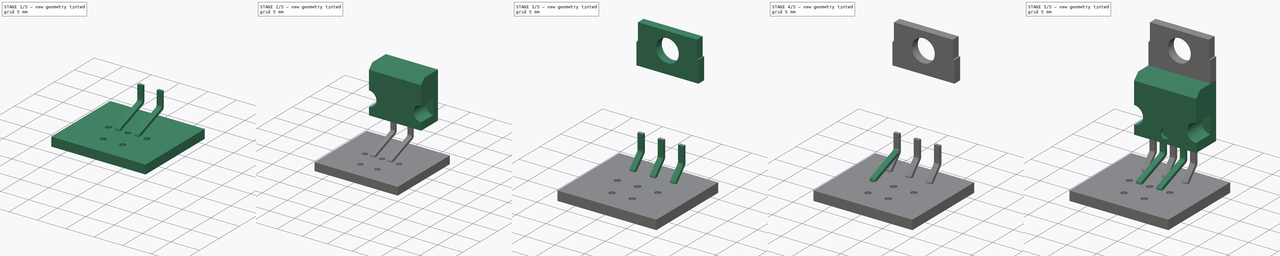
[diagram: build sequence overview — one tinted view per stage of 5, left to right]
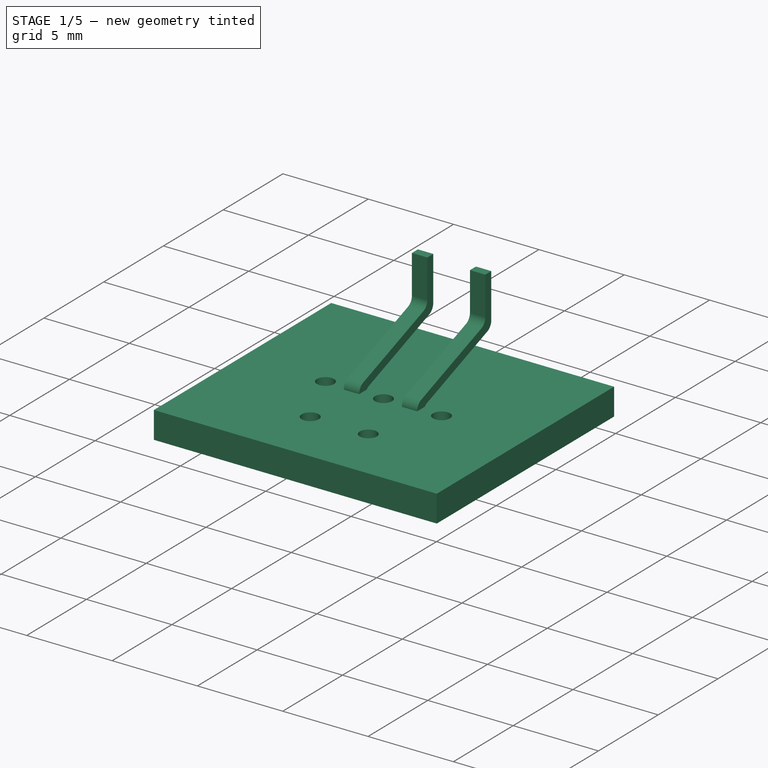
[diagram: stage 1 of 5 — iso view after this stage's code; geometry added in this stage tinted green]
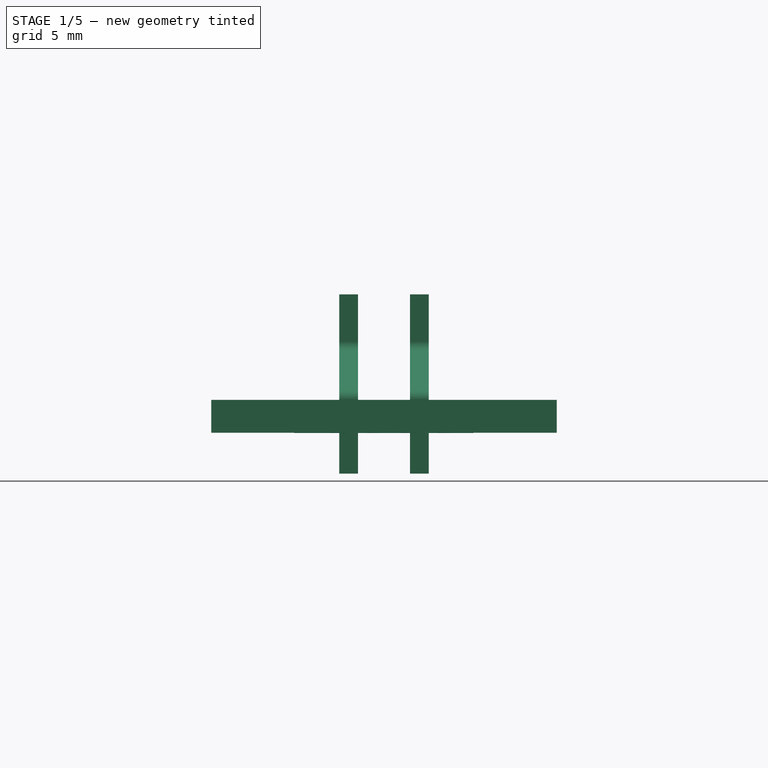
[diagram: stage 1 of 5 — front view after this stage's code; geometry added in this stage tinted green]
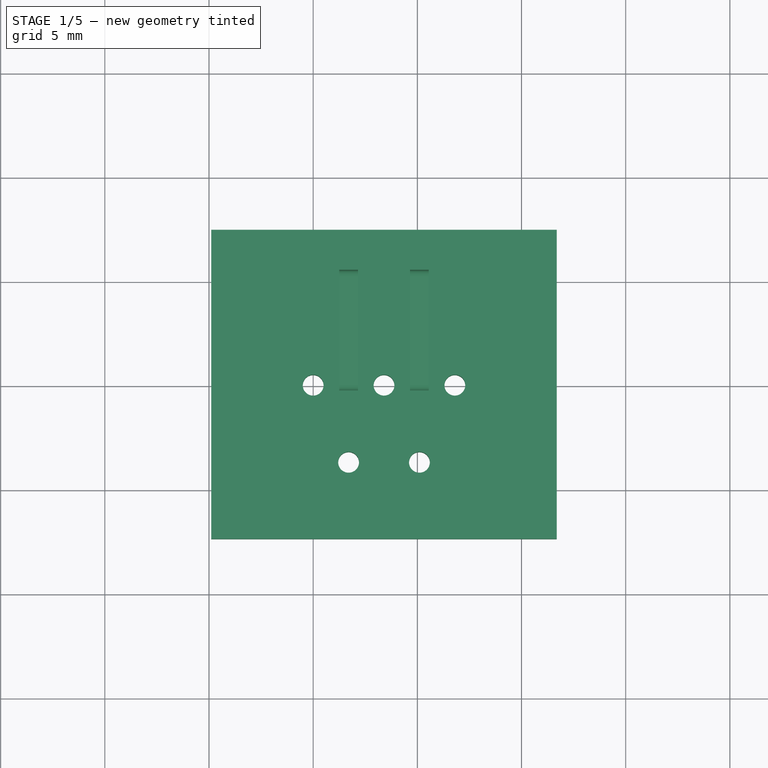
[diagram: stage 1 of 5 — top view after this stage's code; geometry added in this stage tinted green]
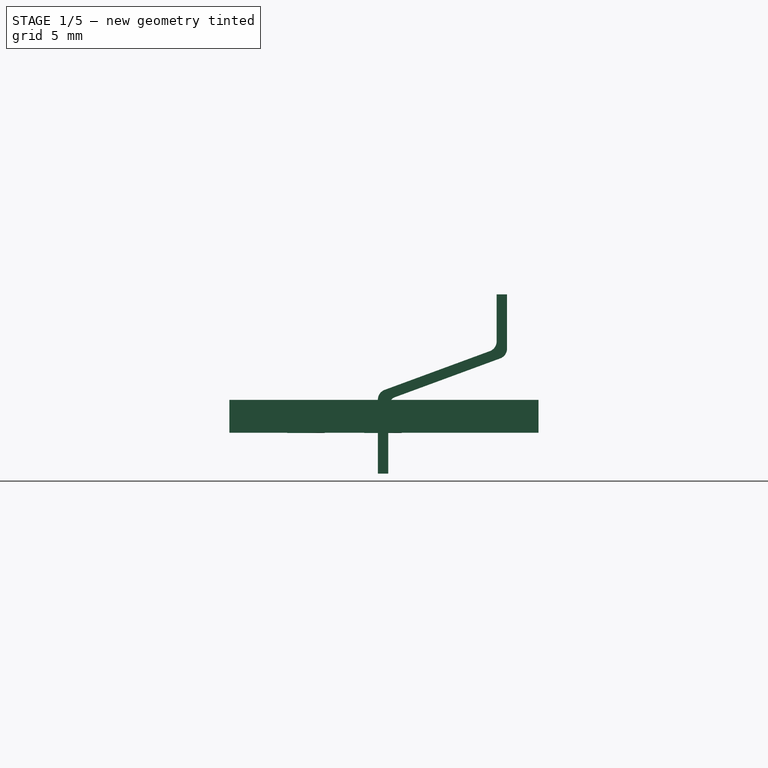
[diagram: stage 1 of 5 — right view after this stage's code; geometry added in this stage tinted green]
FCSTD DOCUMENT  (FreeCAD 0.17R10973 (Git))
Label: Pentawatt-5_Vertical_StaggeredType2
License: All rights reserved
LicenseURL: http://en.wikipedia.org/wiki/All_rights_reserved
objects: Sketcher::SketchObject×8, PartDesign::Body×7, Part::FeaturePython×7, PartDesign::Pad×4, PartDesign::Pocket×3, PartDesign::Fillet×2, PartDesign::Chamfer×1, PartDesign::ShapeBinder×1, App::Part×1, Part::MultiFuse×1, App::DocumentObjectGroup×1, Part::Feature×1
note: 42 computed .brp shape members not serialized (recipe doc carries the construction recipe); baked Part::Feature solids carry a one-line shape summary decoded from their .brp

FEATURE [Part::FeaturePython] BotPads  # a2plus imported part (geometry in sourceFile) (typed FeaturePython)
  fixedPosition = true
FEATURE [Part::FeaturePython] THPs  label="PTHs"  # a2plus imported part (geometry in sourceFile) (typed FeaturePython)
  fixedPosition = true
FEATURE [Part::FeaturePython] newPCB  label="Pcb"  # a2plus imported part (geometry in sourceFile) (typed FeaturePython)
  fixedPosition = true
FEATURE [App::DocumentObjectGroup] TO_220_5_Pentawatt_Multiwatt_5_Vertical_StaggeredType2_fp  label="TO_220_5_Pentawatt_Multiwatt_5_Vertical_StaggeredType2_fp001"
  Group = -> [Filk_lines,TopPads,BotPads,THPs,newPCB]
FEATURE [Part::Feature] Shape001  label="TO_220_5_Pentawatt_Multiwatt_5_Vertical_StaggeredType2"
  shape: bbox 10.4 x 8.75 x 24.4 mm, 89 faces (baked)
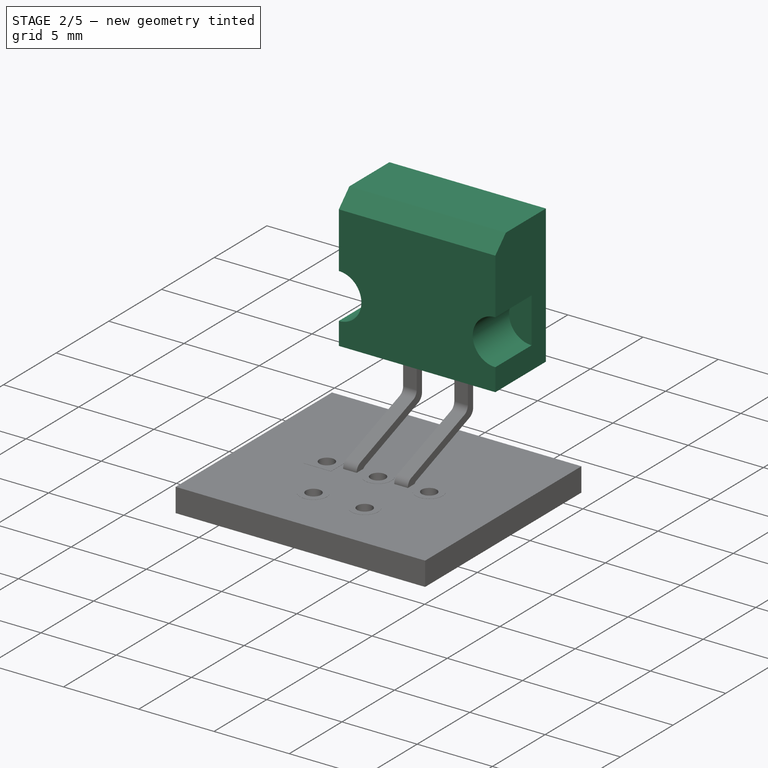
[diagram: stage 2 of 5 — iso view after this stage's code; geometry added in this stage tinted green]
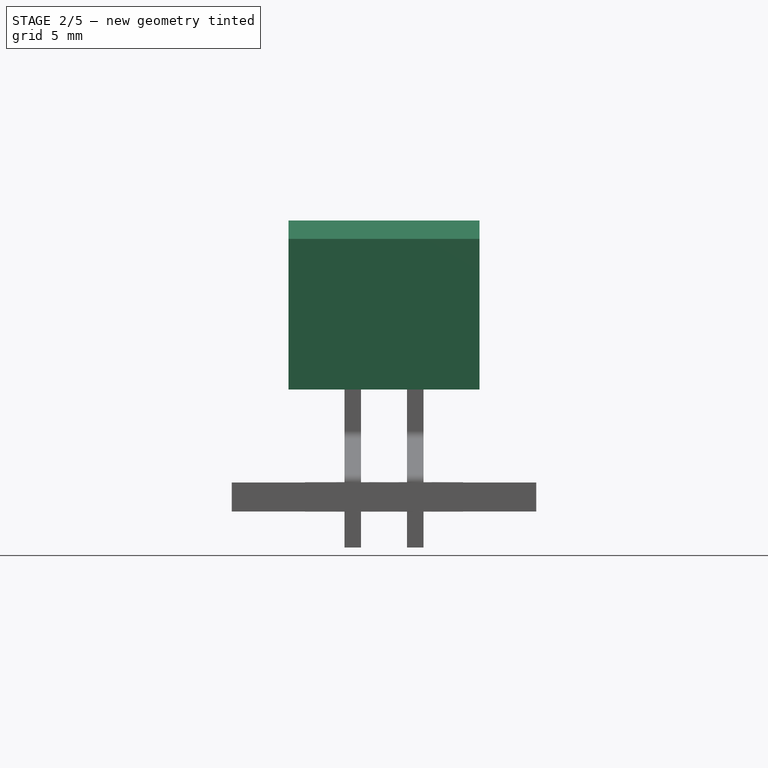
[diagram: stage 2 of 5 — front view after this stage's code; geometry added in this stage tinted green]
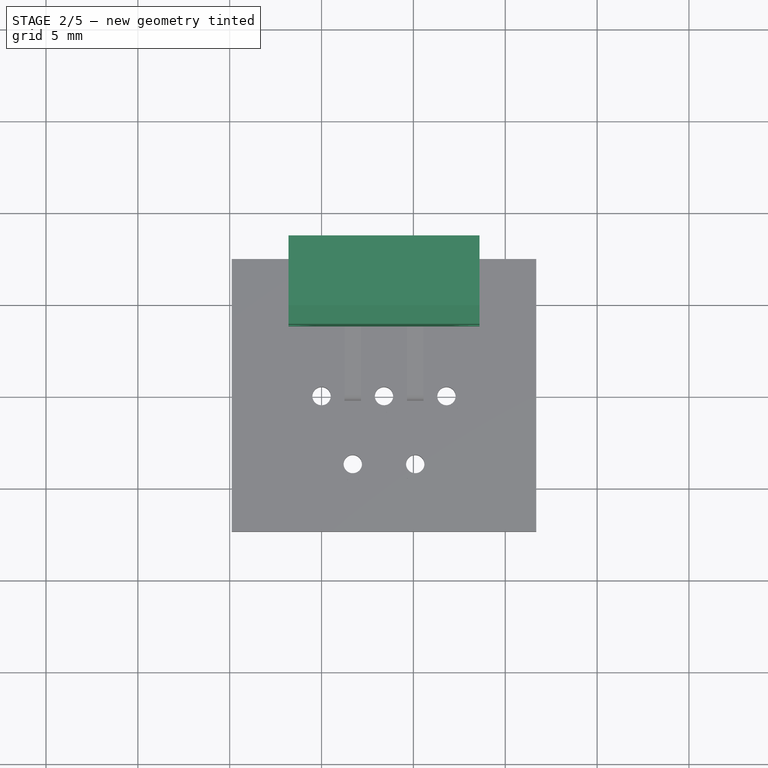
[diagram: stage 2 of 5 — top view after this stage's code; geometry added in this stage tinted green]
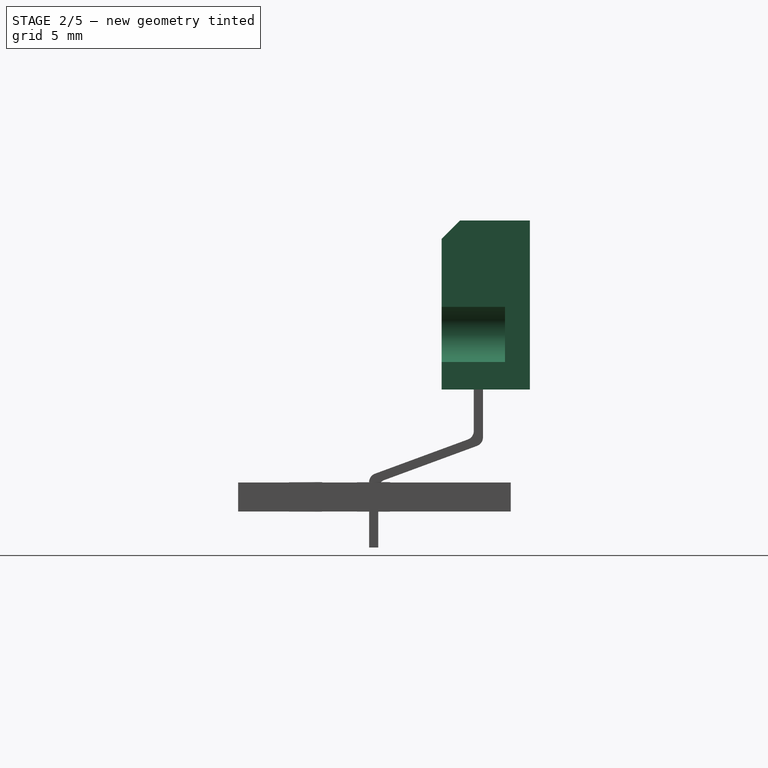
[diagram: stage 2 of 5 — right view after this stage's code; geometry added in this stage tinted green]
FEATURE [Sketcher::SketchObject] Sketch001  label="Long Pin001"
  MapMode = 5
  Placement = pos=(0,0,0) rot=(0.57735,0.57735,0.57735;2.0944rad)
  Support = -> [YZ_Plane004]
  sketch-geometry (9):
    g0: LineSegment StartX=2.74131 StartY=-3.81092 StartZ=0 EndX=2.74131 EndY=0.839079 EndZ=0
    g1: LineSegment StartX=2.74131 StartY=0.839079 StartZ=0 EndX=4.44131 EndY=2.1 EndZ=0
    g2: LineSegment StartX=4.44131 StartY=2.1 StartZ=0 EndX=4.44131 EndY=5.05 EndZ=0
    g3: LineSegment StartX=4.44131 StartY=5.05 StartZ=0 EndX=3.94131 EndY=5.05 EndZ=0
    g4: LineSegment StartX=3.94131 StartY=5.05 StartZ=0 EndX=3.94131 EndY=2.35167 EndZ=0
    g5: LineSegment StartX=3.94131 StartY=2.35167 StartZ=0 EndX=2.24131 EndY=1.09074 EndZ=0
    g6: LineSegment StartX=2.24131 StartY=1.09074 StartZ=0 EndX=2.24131 EndY=-3.81092 EndZ=0
    g7: LineSegment StartX=2.24131 StartY=-3.81092 StartZ=0 EndX=2.74131 EndY=-3.81092 EndZ=0
    g8: LineSegment StartX=1.90381 StartY=0.217887 StartZ=0 EndX=1.60594 EndY=0.619478 EndZ=0
FEATURE [PartDesign::Body] Body001  label="Short Pin Body"
  Origin = -> BodyOrigin001
FEATURE [PartDesign::Body] Body002  label="Plastic Body with holes"
  Origin = -> Body002Origin
FEATURE [Sketcher::SketchObject] Sketch003  label="body sketch"
  MapMode = 5
  Placement = pos=(0,0,5.05) rot=(0,0,1;0rad)
  Support = -> [XY_Plane006]
  superPlacement = pos=(0,0,5.05) rot=(0,0,1;0rad)
  sketch-geometry (4):
    g0: LineSegment StartX=-1.8 StartY=8.5 StartZ=0 EndX=8.6 EndY=8.5 EndZ=0
    g1: LineSegment StartX=8.6 StartY=8.5 StartZ=0 EndX=8.6 EndY=3.7 EndZ=0
    g2: LineSegment StartX=8.6 StartY=3.7 StartZ=0 EndX=-1.8 EndY=3.7 EndZ=0
    g3: LineSegment StartX=-1.8 StartY=3.7 StartZ=0 EndX=-1.8 EndY=8.5 EndZ=0
  constraints (12):
    c: Coincident(g0,g1)
    c: Coincident(g1,g2)
    c: Coincident(g2,g3)
    c: Coincident(g3,g0)
    c: Horizontal(g0)
    c: Horizontal(g2)
    c: Vertical(g1)
    c: Vertical(g3)
    c: DistanceY(g-1,g0) = 8.5
    c: DistanceY(g1,g1) = 4.8
    c: DistanceX(g0,g0) = 10.4
    c: DistanceX(g0,g-1) = 1.8
FEATURE [PartDesign::Pad] Pad002  label="body block"
  Length = 9.2
  Length2 = 100
  Profile = -> Sketch003
  Type = 0
FEATURE [PartDesign::Chamfer] Chamfer  label="Chamfer top of body"
  Base = -> Pad002 [Edge10]
  BaseFeature = -> Pad002
  Size = 1
FEATURE [Sketcher::SketchObject] Sketch004  label="body side holes"
  ExternalGeometry = -> [Chamfer]
  MapMode = 5
  Placement = pos=(0,3.7,0) rot=(1,0,0;1.5708rad)
  Support = -> [Chamfer]
  sketch-geometry (2):
    g0: Circle CenterX=-1.8 CenterY=8.05 CenterZ=0 NormalX=0 NormalY=0 NormalZ=1 Radius=1.5
    g1: Circle CenterX=8.6 CenterY=8.05 CenterZ=0 NormalX=0 NormalY=0 NormalZ=1 Radius=1.5
  constraints (6):
    c: PointOnObject(g0,g-3)
    c: DistanceY(g-6,g0) = 3
    c: Radius(g0) = 1.5
    c: PointOnObject(g1,g-5)
    c: DistanceY(g-6,g1) = 3
    c: Radius(g1) = 1.5
FEATURE [PartDesign::Pocket] Pocket  label="plastic body w/side holes"
  BaseFeature = -> Chamfer
  Length = 3.45
  Profile = -> Sketch004
  Type = 0
FEATURE [Part::FeaturePython] Filk_lines  label="FrontSilk"  # a2plus imported part (geometry in sourceFile) (typed FeaturePython)
  fixedPosition = true
FEATURE [Part::FeaturePython] TopPads  # a2plus imported part (geometry in sourceFile) (typed FeaturePython)
  fixedPosition = true
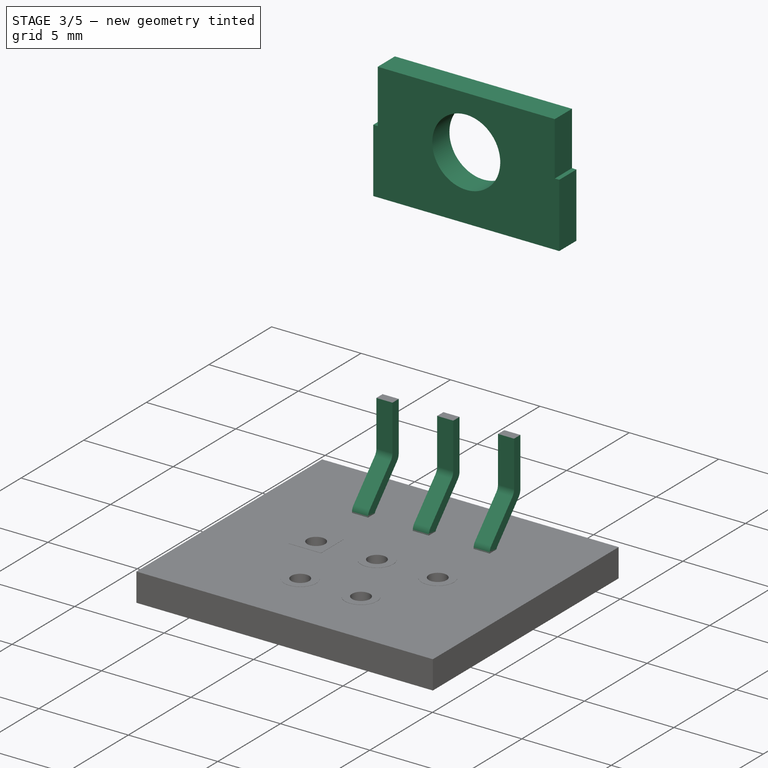
[diagram: stage 3 of 5 — iso view after this stage's code; geometry added in this stage tinted green]
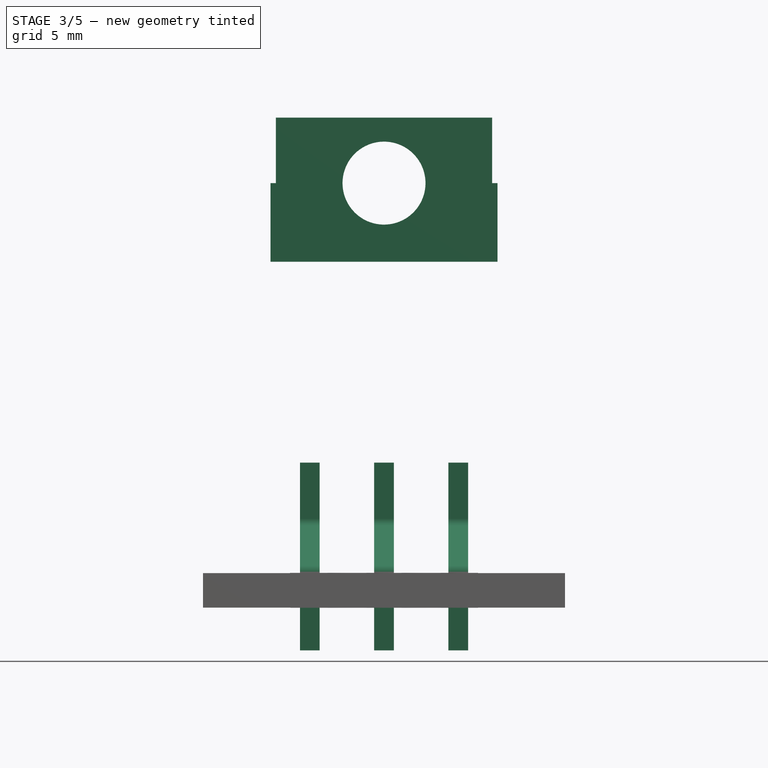
[diagram: stage 3 of 5 — front view after this stage's code; geometry added in this stage tinted green]
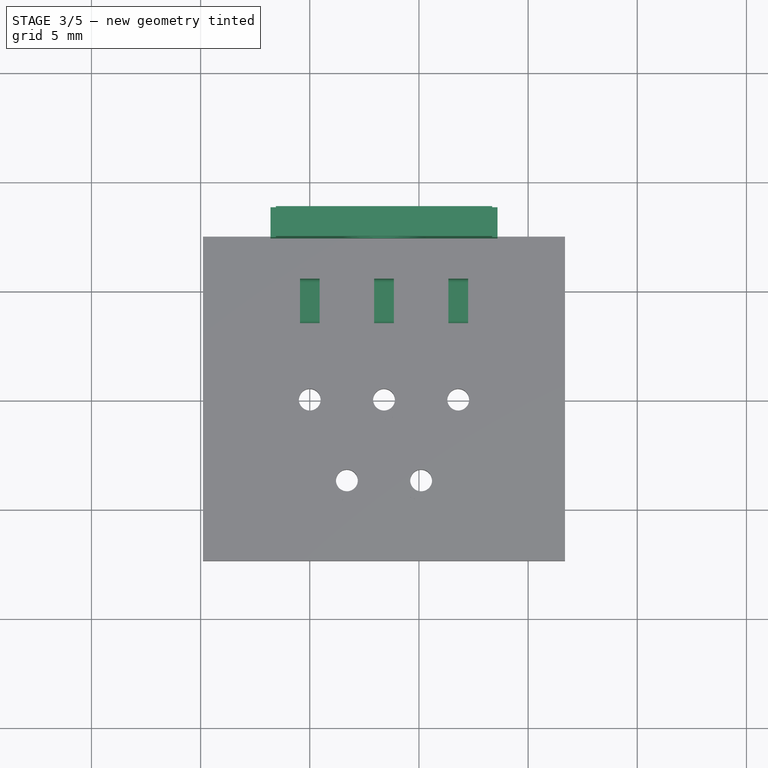
[diagram: stage 3 of 5 — top view after this stage's code; geometry added in this stage tinted green]
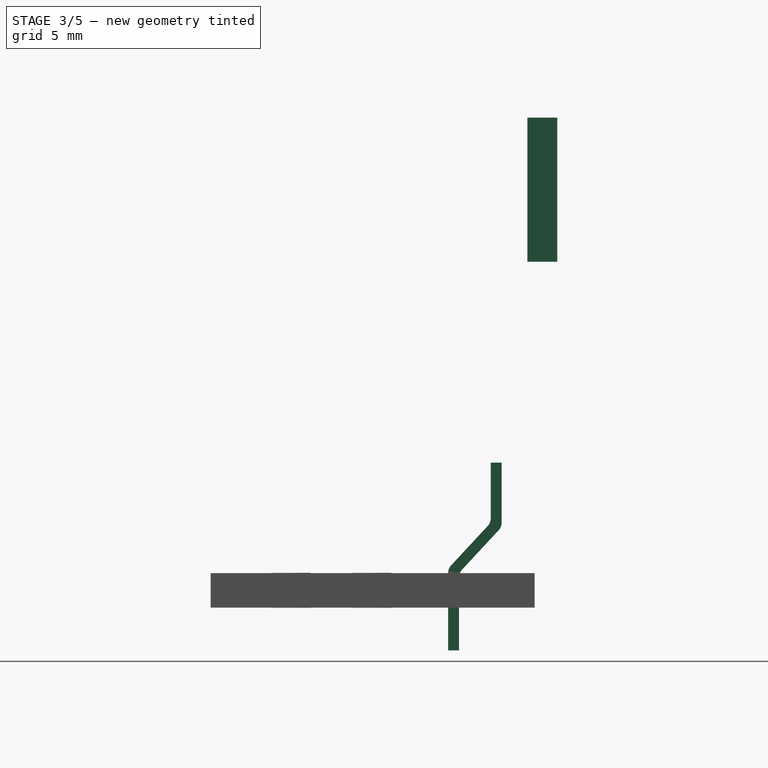
[diagram: stage 3 of 5 — right view after this stage's code; geometry added in this stage tinted green]
FEATURE [Sketcher::SketchObject] Sketch005
  ExternalGeometry = -> [Pocket]
  MapMode = 5
  Placement = pos=(0,3.7,0) rot=(1,0,0;1.5708rad)
  Support = -> [Pocket]
  sketch-geometry (2):
    g0: LineSegment StartX=3.4 StartY=5.05 StartZ=0 EndX=3.4 EndY=6.55 EndZ=0
    g1: Circle CenterX=3.4 CenterY=6.55 CenterZ=0 NormalX=0 NormalY=0 NormalZ=1 Radius=0.75
  constraints (6):
    c: PointOnObject(g0,g-3)
    c: Vertical(g0)
    c: Symmetric(g-3,g-3,g0)
    c: DistanceY(g0,g0) = 1.5
    c: Coincident(g1,g0)
    c: Radius(g1) = 0.75
FEATURE [PartDesign::Pocket] Pocket001  label="small hole in center"
  BaseFeature = -> Pocket
  Length = 0.5
  Profile = -> Sketch005
  Type = 0
FEATURE [PartDesign::Body] PocketBody  label="Plastic Body Body"
  Group = -> [Sketch003,Pad002,Chamfer,Sketch004,Pocket,Sketch005,Pocket001]
  Origin = -> PocketBodyOrigin
FEATURE [PartDesign::ShapeBinder] CopyPocket001
  Placement = pos=(0,0,9.2) rot=(0,0,1;0rad)
FEATURE [Sketcher::SketchObject] Sketch006
  ExternalGeometry = -> [Pocket001,CopyPocket001]
  MapMode = 5
  Placement = pos=(0,0,14.25) rot=(0,0,1;0rad)
  Support = -> [CopyPocket001]
  sketch-geometry (4):
    g0: LineSegment StartX=-1.8 StartY=8.5 StartZ=0 EndX=8.6 EndY=8.5 EndZ=0
    g1: LineSegment StartX=8.6 StartY=8.5 StartZ=0 EndX=8.6 EndY=7.13 EndZ=0
    g2: LineSegment StartX=8.6 StartY=7.13 StartZ=0 EndX=-1.8 EndY=7.13 EndZ=0
    g3: LineSegment StartX=-1.8 StartY=7.13 StartZ=0 EndX=-1.8 EndY=8.5 EndZ=0
  constraints (11):
    c: Coincident(g0,g1)
    c: Coincident(g1,g2)
    c: Coincident(g2,g3)
    c: Coincident(g3,g0)
    c: Horizontal(g0)
    c: Horizontal(g2)
    c: Vertical(g1)
    c: Vertical(g3)
    c: Coincident(g0,g-4)
    c: PointOnObject(g1,g-5)
    c: DistanceY(g1,g1) = 1.37
FEATURE [PartDesign::Pad] Pad003  label="tab"
  Length = 6.6
  Length2 = 100
  Placement = pos=(0,0,9.2) rot=(0,0,1;0rad)
  Profile = -> Sketch006
  Type = 0
FEATURE [Sketcher::SketchObject] Sketch007
  ExternalGeometry = -> [Pad003]
  MapMode = 5
  Placement = pos=(0,7.13,9.2) rot=(1,0,0;1.5708rad)
  Support = -> [Pad003]
  sketch-geometry (10):
    g0: LineSegment StartX=3.4 StartY=11.65 StartZ=0 EndX=3.4 EndY=8.65 EndZ=0
    g1: Circle CenterX=3.4 CenterY=8.65 CenterZ=0 NormalX=0 NormalY=0 NormalZ=1 Radius=1.9
    g2: LineSegment StartX=-1.8 StartY=11.65 StartZ=0 EndX=-1.55 EndY=11.65 EndZ=0
    g3: LineSegment StartX=-1.55 StartY=11.65 StartZ=0 EndX=-1.55 EndY=8.65 EndZ=0
    g4: LineSegment StartX=-1.55 StartY=8.65 StartZ=0 EndX=-1.8 EndY=8.65 EndZ=0
    g5: LineSegment StartX=-1.8 StartY=8.65 StartZ=0 EndX=-1.8 EndY=11.65 EndZ=0
    g6: LineSegment StartX=8.6 StartY=11.65 StartZ=0 EndX=8.35 EndY=11.65 EndZ=0
    g7: LineSegment StartX=8.35 StartY=11.65 StartZ=0 EndX=8.35 EndY=8.65 EndZ=0
    g8: LineSegment StartX=8.35 StartY=8.65 StartZ=0 EndX=8.6 EndY=8.65 EndZ=0
    g9: LineSegment StartX=8.6 StartY=8.65 StartZ=0 EndX=8.6 EndY=11.65 EndZ=0
  constraints (28):
    c: PointOnObject(g0,g-3)
    c: Vertical(g0)
    c: DistanceY(g0,g0) = 3
    c: Symmetric(g-3,g-3,g0)
    c: Coincident(g1,g0)
    c: Radius(g1) = 1.9
    c: Coincident(g2,g3)
    c: Coincident(g3,g4)
    c: Coincident(g4,g5)
    c: Coincident(g5,g2)
    c: Horizontal(g2)
    c: Horizontal(g4)
    c: Vertical(g3)
    c: Vertical(g5)
    c: Coincident(g2,g-4)
    c: DistanceY(g3,g3) = 3
    c: DistanceX(g4,g4) = 0.25
    c: Coincident(g6,g7)
    c: Coincident(g7,g8)
    c: Coincident(g8,g9)
    c: Coincident(g9,g6)
    c: Horizontal(g6)
    c: Horizontal(g8)
    c: Vertical(g7)
    c: Vertical(g9)
    c: DistanceY(g7,g7) = 3
    c: Coincident(g6,g-5)
    c: DistanceX(g8,g8) = 0.25
FEATURE [PartDesign::Pocket] Pocket002  label="tab with hole"
  BaseFeature = -> Pad003
  Length = 5
  Placement = pos=(0,0,9.2) rot=(0,0,1;0rad)
  Profile = -> Sketch007
  Type = 0
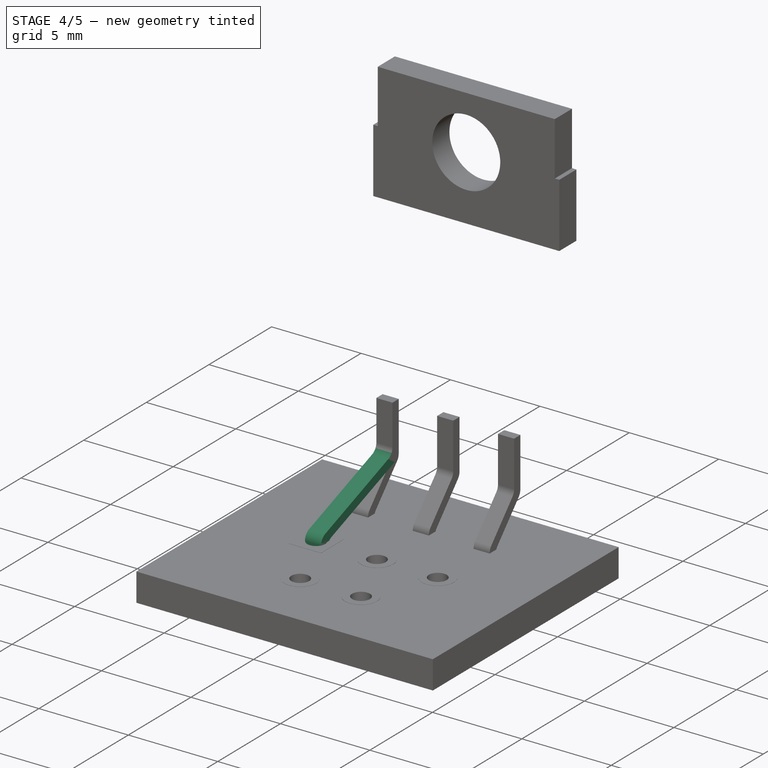
[diagram: stage 4 of 5 — iso view after this stage's code; geometry added in this stage tinted green]
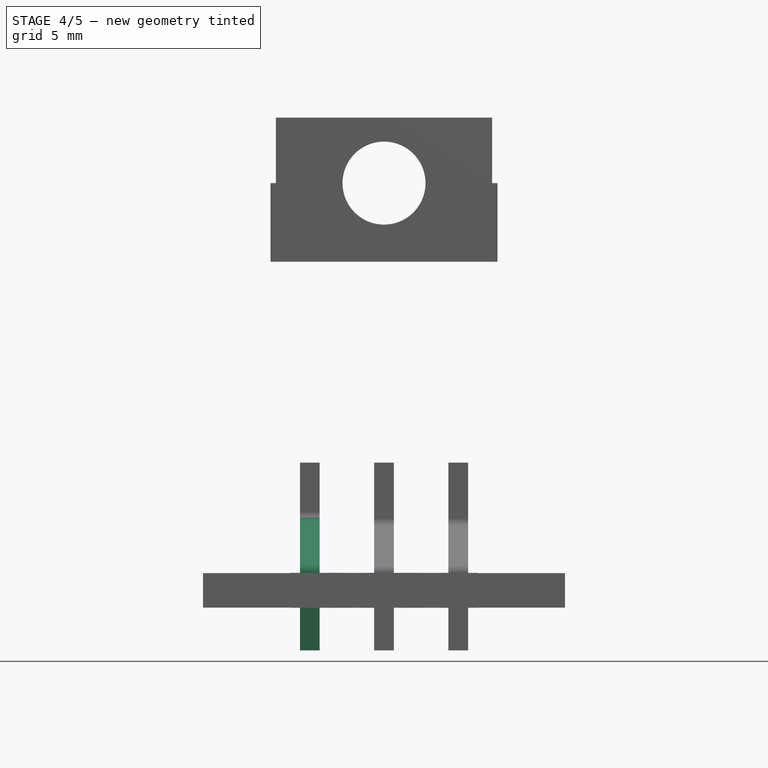
[diagram: stage 4 of 5 — front view after this stage's code; geometry added in this stage tinted green]
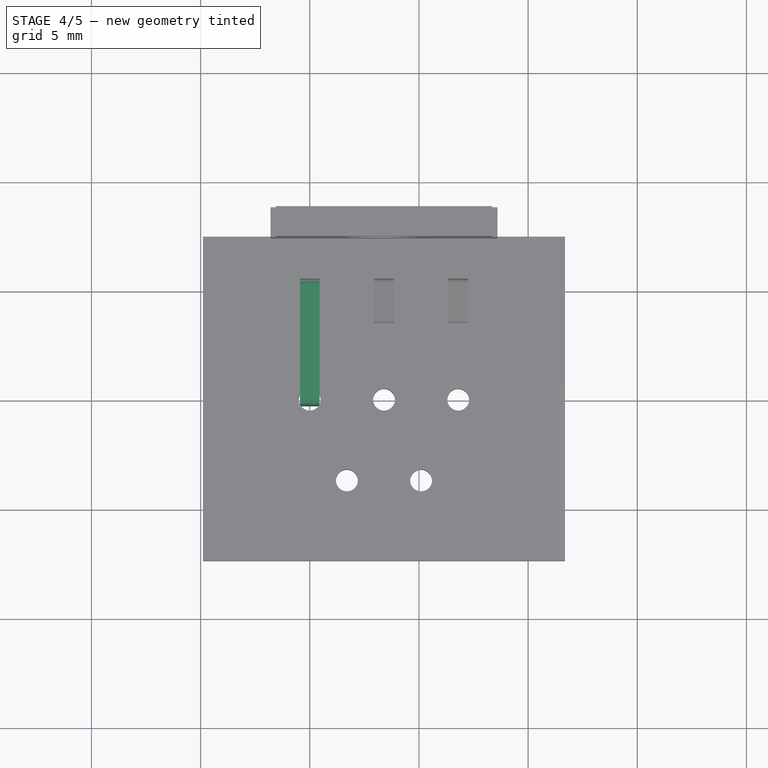
[diagram: stage 4 of 5 — top view after this stage's code; geometry added in this stage tinted green]
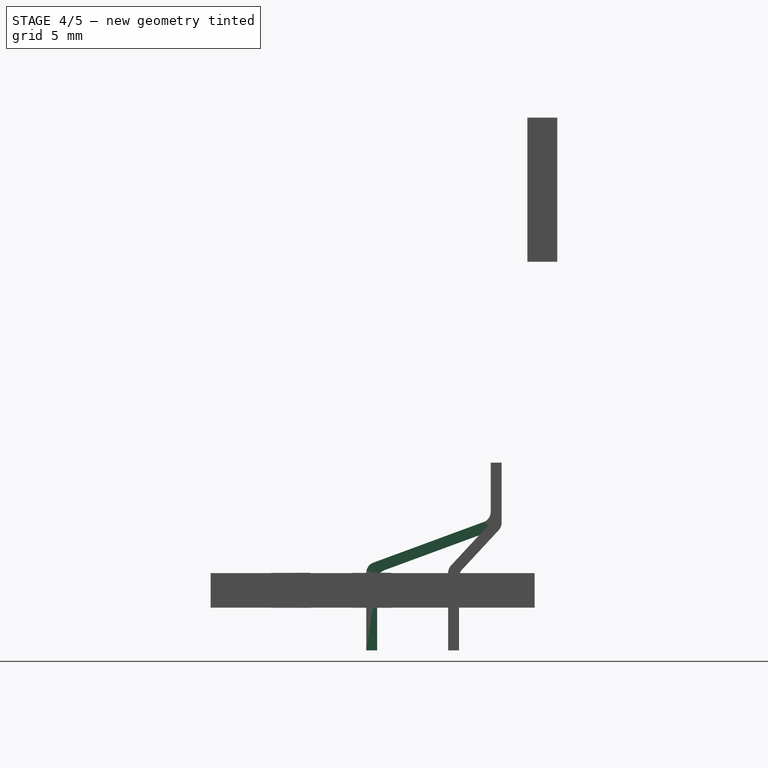
[diagram: stage 4 of 5 — right view after this stage's code; geometry added in this stage tinted green]
FEATURE [PartDesign::Body] Body  label="Long Pin Body"
  Origin = -> BodyOrigin
FEATURE [Sketcher::SketchObject] Sketch  label="Long Pin"
  MapMode = 5
  Placement = pos=(0,0,0) rot=(0.57735,0.57735,0.57735;2.0944rad)
  Support = -> [YZ_Plane005]
  sketch-geometry (9):
    g0: LineSegment StartX=0.25 StartY=-3.55 StartZ=0 EndX=0.25 EndY=0 EndZ=0
    g1: LineSegment StartX=0.25 StartY=0 StartZ=0 EndX=5.95 EndY=2.1 EndZ=0
    g2: LineSegment StartX=5.95 StartY=2.1 StartZ=0 EndX=5.95 EndY=5.05 EndZ=0
    g3: LineSegment StartX=5.95 StartY=5.05 StartZ=0 EndX=5.45 EndY=5.05 EndZ=0
    g4: LineSegment StartX=5.45 StartY=5.05 StartZ=0 EndX=5.45 EndY=2.44864 EndZ=0
    g5: LineSegment StartX=5.45 StartY=2.44864 StartZ=0 EndX=-0.25 EndY=0.348644 EndZ=0
    g6: LineSegment StartX=-0.25 StartY=0.348644 StartZ=0 EndX=-0.25 EndY=-3.55 EndZ=0
    g7: LineSegment StartX=-0.25 StartY=-3.55 StartZ=0 EndX=0.25 EndY=-3.55 EndZ=0
    g8: LineSegment StartX=1.9062 StartY=0.610178 StartZ=0 EndX=1.73334 EndY=1.07935 EndZ=0
  constraints (26):
    c: Vertical(g0)
    c: Coincident(g0,g1)
    c: Coincident(g1,g2)
    c: Vertical(g2)
    c: Coincident(g2,g3)
    c: Coincident(g3,g4)
    c: Vertical(g4)
    c: Coincident(g4,g5)
    c: Coincident(g5,g6)
    c: Vertical(g6)
    c: Coincident(g6,g7)
    c: Coincident(g7,g0)
    c: Horizontal(g7)
    c: Horizontal(g3)
    c: Parallel(g1,g5)
    c: DistanceX(g7,g7) = 0.5
    c: DistanceY(g0,g0) = 3.55
    c: PointOnObject(g8,g1)
    c: PointOnObject(g8,g5)
    c: Perpendicular(g1,g8)
    c: Distance(g8) = 0.5
    c: DistanceY(g-1,g1) = 2.1
    c: DistanceY(g2,g2) = 2.95
    c: DistanceX(g5,g5) = 5.7
    c: DistanceX(g3,g3) = 0.5
    c: Symmetric(g6,g0,g-2)
FEATURE [PartDesign::Pad] Pad  label="Long Pin Pad"
  Length = 0.9
  Length2 = 100
  Midplane = true
  Placement = pos=(0,0,0) rot=(0.57735,0.57735,0.57735;2.0944rad)
  Profile = -> Sketch
  Type = 0
FEATURE [PartDesign::Fillet] Fillet  label="Long Pin Part"
  Base = -> Pad [Edge14,Edge17,Edge5,Edge2]
  BaseFeature = -> Pad
  Placement = pos=(0,0,0) rot=(0.57735,0.57735,0.57735;2.0944rad)
  Radius = 0.5
FEATURE [Sketcher::SketchObject] Sketch002  label="Short Pin"
  MapMode = 5
  Placement = pos=(0,0,0) rot=(0.57735,0.57735,0.57735;2.0944rad)
  Support = -> [YZ_Plane006]
  sketch-geometry (9):
    g0: LineSegment StartX=4 StartY=-3.55 StartZ=0 EndX=4 EndY=0 EndZ=0
    g1: LineSegment StartX=4 StartY=0 StartZ=0 EndX=5.95 EndY=2.1 EndZ=0
    g2: LineSegment StartX=5.95 StartY=2.1 StartZ=0 EndX=5.95 EndY=5.05 EndZ=0
    g3: LineSegment StartX=5.95 StartY=5.05 StartZ=0 EndX=5.45 EndY=5.05 EndZ=0
    g4: LineSegment StartX=5.45 StartY=5.05 StartZ=0 EndX=5.45 EndY=2.29635 EndZ=0
    g5: LineSegment StartX=5.45 StartY=2.29635 StartZ=0 EndX=3.5 EndY=0.196345 EndZ=0
    g6: LineSegment StartX=3.5 StartY=0.196345 StartZ=0 EndX=3.5 EndY=-3.55 EndZ=0
    g7: LineSegment StartX=3.5 StartY=-3.55 StartZ=0 EndX=4 EndY=-3.55 EndZ=0
    g8: LineSegment StartX=4.28579 StartY=0.307777 StartZ=0 EndX=3.9194 EndY=0.648002 EndZ=0
  constraints (27):
    c: Vertical(g0)
    c: Coincident(g0,g1)
    c: Coincident(g1,g2)
    c: Vertical(g2)
    c: Coincident(g2,g3)
    c: Coincident(g3,g4)
    c: Vertical(g4)
    c: Coincident(g4,g5)
    c: Coincident(g5,g6)
    c: Vertical(g6)
    c: Coincident(g6,g7)
    c: Coincident(g7,g0)
    c: Horizontal(g7)
    c: Horizontal(g3)
    c: Parallel(g1,g5)
    c: DistanceX(g7,g7) = 0.5
    c: DistanceY(g0,g0) = 3.55
    c: PointOnObject(g8,g1)
    c: PointOnObject(g8,g5)
    c: Perpendicular(g1,g8)
    c: Distance(g8) = 0.5
    c: DistanceY(g2,g2) = 2.95
    c: DistanceX(g5,g5) = 1.95
    c: DistanceX(g3,g3) = 0.5
    c: DistanceX(g-1,g5) = 3.5
    c: DistanceY(g1,g1) = 2.1
    c: PointOnObject(g0,g-1)
FEATURE [PartDesign::Pad] Pad001  label="Short Pin Pad"
  Length = 0.9
  Length2 = 100
  Midplane = true
  Placement = pos=(0,0,0) rot=(0.57735,0.57735,0.57735;2.0944rad)
  Profile = -> Sketch002
  Type = 0
FEATURE [PartDesign::Fillet] Fillet001  label="Short Pin Part"
  Base = -> Pad001 [Edge2,Edge5,Edge14,Edge17]
  BaseFeature = -> Pad001
  Placement = pos=(0,0,0) rot=(0.57735,0.57735,0.57735;2.0944rad)
  Radius = 0.5
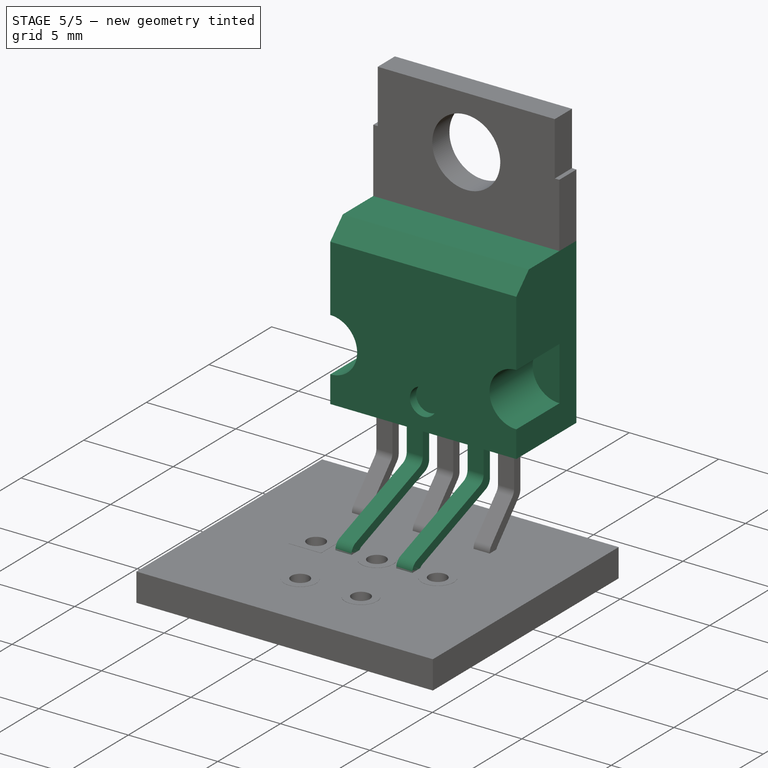
[diagram: stage 5 of 5 — iso view after this stage's code; geometry added in this stage tinted green]
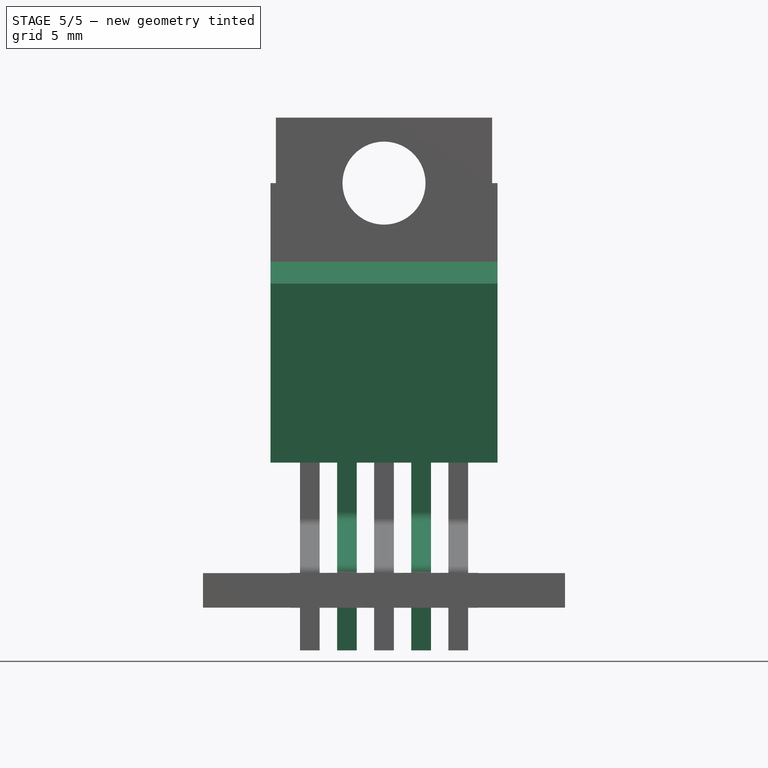
[diagram: stage 5 of 5 — front view after this stage's code; geometry added in this stage tinted green]
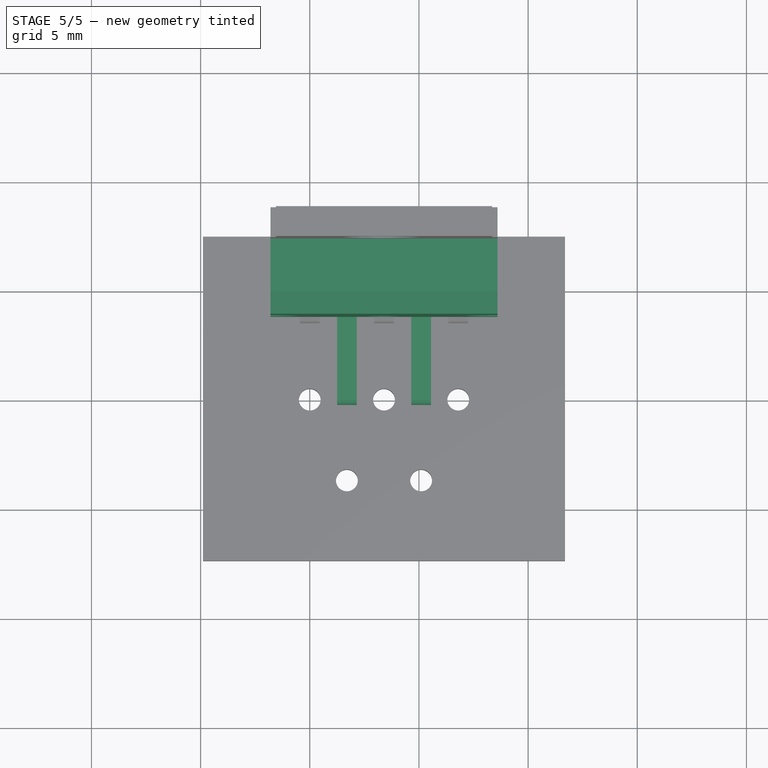
[diagram: stage 5 of 5 — top view after this stage's code; geometry added in this stage tinted green]
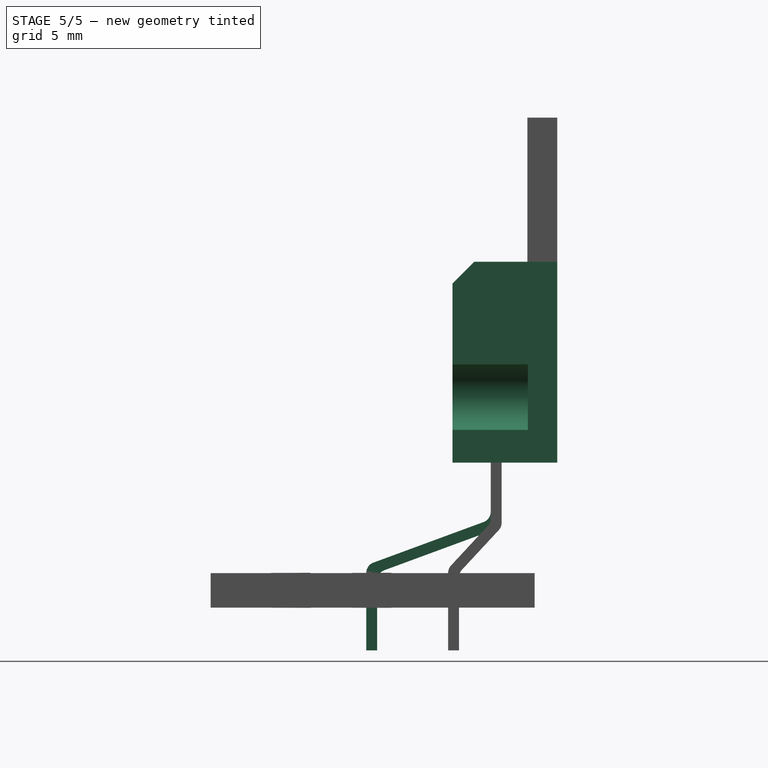
[diagram: stage 5 of 5 — right view after this stage's code; geometry added in this stage tinted green]
FEATURE [PartDesign::Body] FilletBody
  Group = -> [Sketch,Pad,Fillet]
  Origin = -> FilletBodyOrigin
  Tip = -> Fillet
FEATURE [Part::FeaturePython] Array  label="Long Pin Array"  # Draft array (typed FeaturePython)
  Angle = 360
  ArrayType = 0
  Axis = (0,0,1)
  Base = -> FilletBody
  Center = (0,0,0)
  Fuse = false
  IntervalAxis = (0,0,0)
  IntervalX = (3.4,0,0)
  IntervalY = (0,1,0)
  IntervalZ = (0,0,0)
  NumberPolar = 1
  NumberX = 2
  NumberY = 1
  NumberZ = 1
  Placement = pos=(1.7,0,0) rot=(0,0,1;0rad)
FEATURE [PartDesign::Body] Fillet001Body
  Group = -> [Sketch002,Pad001,Fillet001]
  Origin = -> Fillet001BodyOrigin
  Tip = -> Fillet001
FEATURE [Part::FeaturePython] Array001  label="Short Pin Array"  # Draft array (typed FeaturePython)
  Angle = 360
  ArrayType = 0
  Axis = (0,0,0)
  Base = -> Fillet001Body
  Center = (0,0,0)
  Fuse = false
  IntervalAxis = (0,0,0)
  IntervalX = (3.4,0,0)
  IntervalY = (0,1,0)
  IntervalZ = (0,0,0)
  NumberPolar = 1
  NumberX = 3
  NumberY = 1
  NumberZ = 1
FEATURE [PartDesign::Body] Body003  label="tab body"
  Group = -> [CopyPocket001,Sketch006,Pad003,Sketch007,Pocket002]
  Origin = -> Body003Origin
  Tip = -> Pocket002
FEATURE [App::Part] Part
  Group = -> [Body002Origin,Body002,Array001,Array,BodyOrigin001,Body001,Sketch001,BodyOrigin,Body,YZ_Plane001,FilletBody,Fillet001Body,PocketBody,Body003]
  License = CC BY 3.0
  LicenseURL = http://creativecommons.org/licenses/by/3.0/
  Origin = -> PartOrigin
FEATURE [Part::MultiFuse] tab_with_hole_mp_cp  label="TO_220_5_Pentawatt_Multiwatt_5_Vertical_StaggeredType2_fp"
  Shapes = -> [Pocket002,Pocket001,Array,Array001]
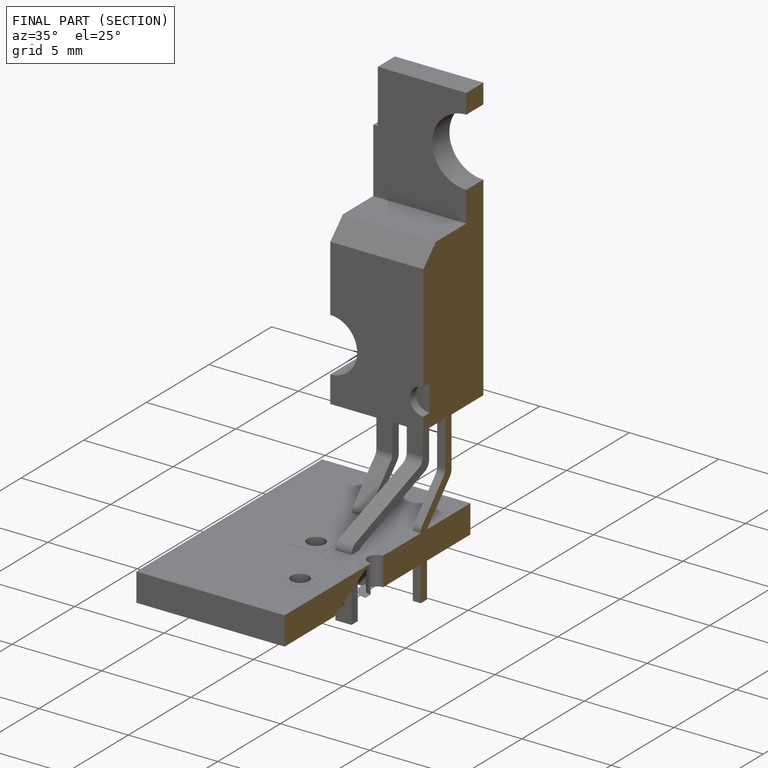
[diagram: finished part — half-section view (interior)]
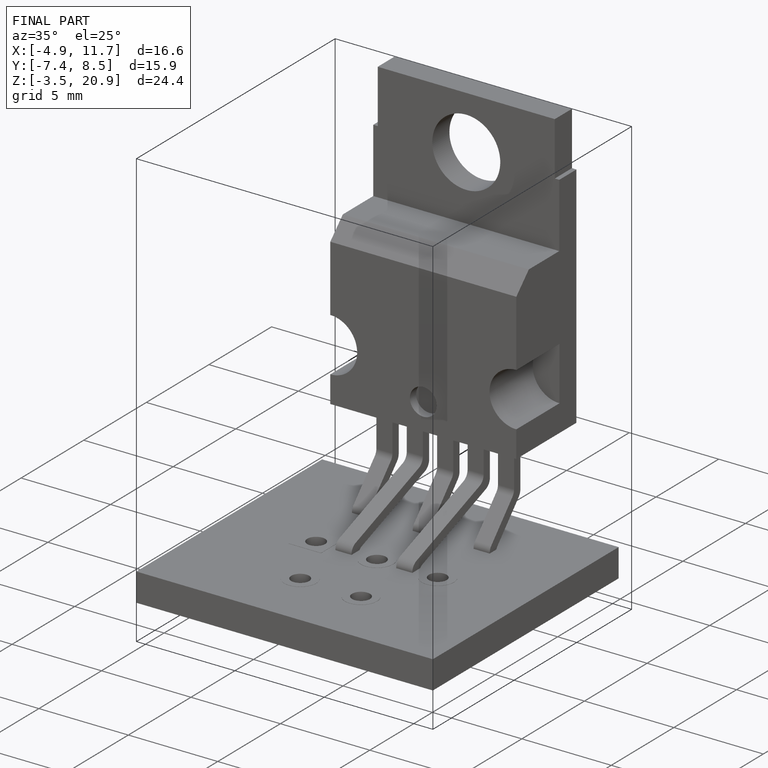
[diagram: finished part — iso view with bounding-box wireframe]
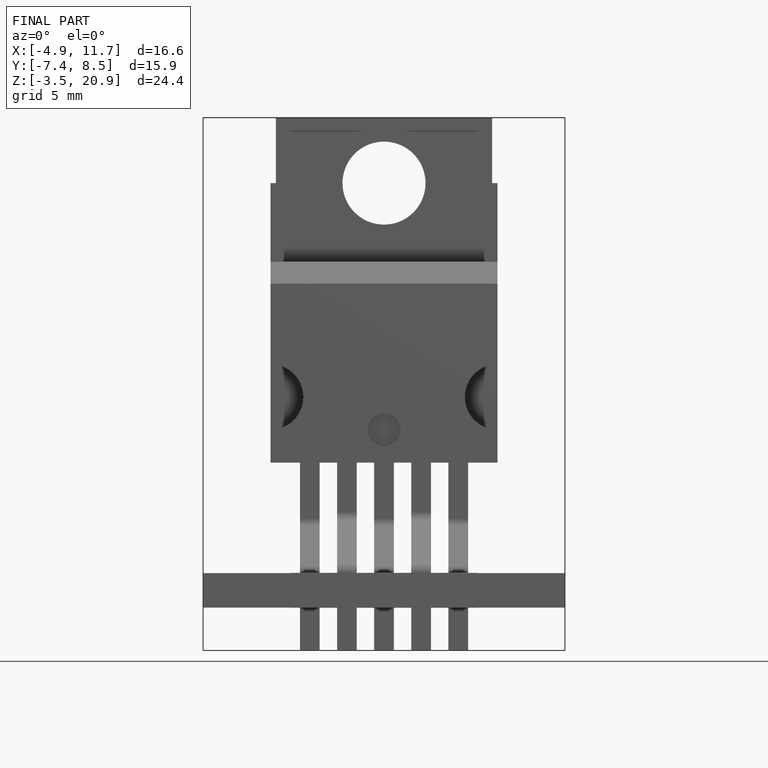
[diagram: finished part — front view with bounding-box wireframe]
